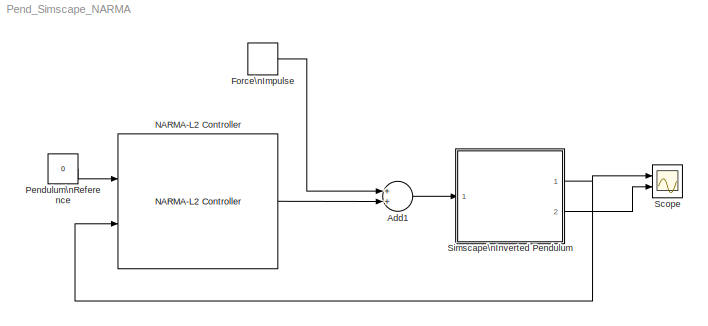
MODEL Pend_Simscape_NARMA
KIND model
BLOCK [Sum] Add1
  InputSameDT = off
  OutDataTypeStr = Inherit: Inherit via internal rule
  Ports = [2, 1]
  SID = 84
  SaturateOnIntegerOverflow = off
BLOCK [DiscretePulseGenerator] Force\nImpulse
  Amplitude = 1000
  Period = 10
  Ports = [0, 1]
  PulseType = Time based
  PulseWidth = 0.01
  SID = 85
BLOCK [Reference] NARMA-L2 Controller  REF=neural/Control Systems/NARMA-L2 Controller
  B1 = [4.0827410388636052;-2.7480169537199117;3.9938653016287904;1.6416621221169179;0.09143535551721825;-1.0613774671551153;1.8319879415725189]
  B2 = -3.7562514330025714
  B3 = [5.3103702819776153;-2.9033864762215909;2.1423079116546502;-0.86559210084867333;0.18268348726742417;1.6927221377886998;1.6012407590778299]
  B4 = -0.034451980606893584
  IW1_1 = [-3.6924056938774843 -1.802284662914535 -1.4111010428830473;2.2840951494559287 1.2309270610131906 1.6712881483201816;-2.919508523796281 -0.75707831959701843 0.33354935478644038;-4.9174278988374809 2.5736314543159304 -0.0033537807039824559;2.1799153856390943 1.8291411822184034 -1.4486797423626137;-1.7308817445673805 1.6958843590210397 -1.7596686211224779;1.8096550296520935 2.2804834869161525 0.3854...<+14ch>
  IW3_2 = [-5.9052189973877613 3.8214338615589147 0.025370848505931742;2.9766611822840745 0.53188916725796254 1.8519364095485766;-3.3407905540219676 -1.5692531625034507 -0.60370968513271428;2.2491467740026345 -2.1722796430145737 -0.76769358028662449;1.8914669418145722 -1.3241505774172171 2.0115838865941971;0.22939079880138086 -1.9244006276922605 1.8646894716084561;2.8657983932516928 -1.8275867742463541 0.81...<+16ch>
  IW5_3 = -0.068940530036870618
  LW2_1 = [-0.051644636299883917 -0.35272470439449544 -1.2250651476020313 -4.2708391509559398 1.2290321513788245 -0.76494441990324114 -0.44247695085948913]
  LW4_3 = [2.7159004469744152 0.47791569008378731 1.1463181584805096 0.40535868971023298 -0.60714158392711404 -0.50546607456609505 0.26389152704638413]
  LW5_4 = 0.064048098205895715
  LW6_2 = 0.20589091780600058
  LW6_5 = -0.038446540367651896
  Limit_output = 0
  Ni = 2
  Nj = 2
  Normalize = 0
  Ports = [2, 1]
  S1 = 7
  SID = 143
  SourceBlock = neural/Control Systems/NARMA-L2 Controller
  SourceType = NARMA-L2 Controller
  Ts = 0.2
  Use_Previous_Weights = 1
  Use_Testing = 1
  Use_validation = 1
  epochs = 200
  max_i = 1000
  max_i_int = 2
  max_output = Inf
  maxp = 993.70042914989722
  maxt = 993.70042914989722
  min_i = -1000
  min_i_int = 0.01
  min_output = -Inf
  minp = -997.39886259880768
  mint = -3.137330321837569
  sam_training = 500
  sim_file = Pend_Model_Simscape_oneout
  trainfun = trainlm
BLOCK [Constant] Pendulum\nReference
  SID = 82
  Value = 0
BLOCK [Scope] Scope
  DataFormat = StructureWithTime
  Floating = off
  NumInputPorts = 2
  Ports = [2]
  SID = 74
  SampleTime = 0
  ShowLegends = off
  YMax = 5~5
  YMin = -5~-5
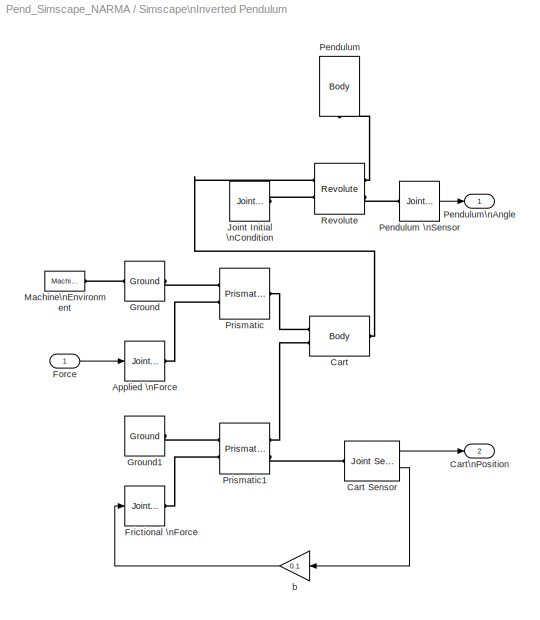
BLOCK [SubSystem] Simscape\nInverted Pendulum
  Ports = [1, 2]
  RequestExecContextInheritance = off
  SID = 125
BLOCK [Reference] Simscape\nInverted Pendulum/Applied \nForce  REF=mblibv1/Sensors & \nActuators/Joint Actuator
  AccelerationUnits = m/s^2
  ActiveIO = on
  ActuationStyle = Force
  AngleUnits = deg
  ArcAccelerationUnits = deg/s^2
  ArcVelocityUnits = deg/s
  ClassName = JointActuator
  CoordPositionUnits = m
  DialogClass = MechanicalActuatorBlock
  ForceUnits = N
  PhysicalDomain = Mechanical
  PortType = blob
  Ports = [1, 0, 0, 0, 0, 0, 1]
  Primitive = P1
  ReferenceFrame = Absolute (World)
  SID = 127
  SourceBlock = mblibv1/Sensors & \nActuators/Joint Actuator
  SourceType = Joint Actuator
  TorqueUnits = N-m
  UpdateFromCAD = off
  VelocityUnits = m/s
  Width = 1
BLOCK [Reference] Simscape\nInverted Pendulum/Cart  REF=mblibv1/Bodies/Body
  AttachedToCS = CG
  BodyColor = [1 0 0]
  BodyColorSelMode = MACHINE_DEFAULT
  CG = Left$CG$[0 0 0]$WORLD$WORLD$m$[0 0 0]$Euler X-Y-Z$deg$WORLD$false$none
  CGPos = [0 0 0]
  CGRot = [0 0 0]
  CS0Pos = []
  CS0Rot = []
  CS10Pos = []
  CS10Rot = []
  CS11Pos = []
  CS11Rot = []
  CS12Pos = []
  CS12Rot = []
  CS13Pos = []
  CS13Rot = []
  CS14Pos = []
  CS14Rot = []
  CS15Pos = []
  CS15Rot = []
  CS16Pos = []
  CS16Rot = []
  CS17Pos = []
  CS17Rot = []
  CS18Pos = []
  CS18Rot = []
  CS19Pos = []
  CS19Rot = []
  CS1Pos = [-1 0 0]
  CS1Rot = [0 0 0]
  CS20Pos = []
  CS20Rot = []
  CS2Pos = [0 0 0]
  CS2Rot = [0 0 0]
  CS3Pos = [0 0.5 0]
  CS3Rot = [0 0 0]
  CS4Pos = [-1 0.5 0]
  CS4Rot = [0 0 0]
  CS5Pos = [-1 -0.5 0]
  CS5Rot = [0 0 0]
  CS6Pos = [1 -0.5 0]
  CS6Rot = [0 0 0]
  CS7Pos = [1 0.5 0]
  CS7Rot = [0 0 0]
  CS8Pos = []
  CS8Rot = []
  CS9Pos = []
  CS9Rot = []
  ClassName = Body
  Density = 1
  DensityUnits = kg/m^3
  DensityUse = false
  DialogClass = MechanicalBodyBlock
  GraphicsMode = MACHINE_DEFAULT
  Inertia = eye(3)
  InertiaUnits = kg*m^2
  LConnTagsString = CS1|CS2
  Mass = 0.5
  MassUnits = kg
  Ports = [0, 0, 0, 0, 0, 2, 1]
  RConnTagsString = CS3
  SID = 128
  Shape = Cylinder
  ShapeDims = [1 1]
  ShapeUnits = m
  ShapeUse = false
  SourceBlock = mblibv1/Bodies/Body
  SourceType = Body
  UpdateFromCAD = off
  WorkingFrames = Left$CS1$[-1 0 0]$CG$CG$m$[0 0 0]$Euler X-Y-Z$deg$WORLD$true$none#Left$CS2$[0 0 0]$CG$CG$m$[0 0 0]$Euler X-Y-Z$deg$WORLD$true$none#Right$CS3$[0 0.5 0]$CG$CG$m$[0 0 0]$Euler X-Y-Z$deg$WORLD$true$none#Right$CS4$[-1 0.5 0]$CG$CG$m$[0 0 0]$Euler X-Y-Z$deg$WORLD$false$none#Right$CS5$[-1 -0.5 0]$CG$CG$m$[0 0 0]$Euler X-Y-Z$deg$WORLD$false$none#Right$CS6$[1 -0.5 0]$CG$CG$m$[0 0 0]$Euler X-Y-Z$deg$WORLD$f...<+78ch>
BLOCK [Reference] Simscape\nInverted Pendulum/Cart Sensor  REF=mblibv1/Sensors & \nActuators/Joint Sensor
  Acceleration = off
  AccelerationUnits = m/s^2
  ActiveIO = on
  Angle = on
  AngleUnits = deg
  ArcAcceleration = off
  ArcAccelerationUnits = deg/s^2
  ArcVelocity = off
  ArcVelocityUnits = deg/s
  ClassName = JointSensor
  CoordPosition = on
  CoordPositionUnits = m
  DialogClass = MechanicalSensorBlock
  Force = off
  ForceUnits = N
  Muxed = off
  OutputVector = [1]
  PhysicalDomain = Mechanical
  PortType = blob
  Ports = [0, 2, 0, 0, 0, 1]
  Pose = off
  Primitive = P1
  Quaternion = on
  QuaternionDDT = off
  QuaternionDT = off
  QuaternionUnits = off
  ReactionForce = off
  ReactionForceUnits = N
  ReactionMoment = off
  ReactionMomentUnits = N*m
  ReactionReferenceFrame = Absolute (World)
  ReactionSensedSide = Base
  ReferenceFrame = Absolute (World)
  SID = 129
  SourceBlock = mblibv1/Sensors & \nActuators/Joint Sensor
  SourceType = Joint Sensor
  Torque = off
  TorqueUnits = N*m
  UpdateFromCAD = off
  Velocity = on
  VelocityUnits = m/s
  Width = 2
BLOCK [Outport] Simscape\nInverted Pendulum/Cart\nPosition
  IconDisplay = Port number
  Port = 2
  SID = 142
BLOCK [Inport] Simscape\nInverted Pendulum/Force
  IconDisplay = Port number
  SID = 126
BLOCK [Reference] Simscape\nInverted Pendulum/Frictional \nForce  REF=mblibv1/Sensors & \nActuators/Joint Actuator
  AccelerationUnits = m/s^2
  ActiveIO = on
  ActuationStyle = Force
  AngleUnits = deg
  ArcAccelerationUnits = deg/s^2
  ArcVelocityUnits = deg/s
  ClassName = JointActuator
  CoordPositionUnits = m
  DialogClass = MechanicalActuatorBlock
  ForceUnits = N
  PhysicalDomain = Mechanical
  PortType = blob
  Ports = [1, 0, 0, 0, 0, 0, 1]
  Primitive = P1
  ReferenceFrame = Absolute (World)
  SID = 130
  SourceBlock = mblibv1/Sensors & \nActuators/Joint Actuator
  SourceType = Joint Actuator
  TorqueUnits = N*m
  UpdateFromCAD = off
  VelocityUnits = m/s
  Width = 1
BLOCK [Reference] Simscape\nInverted Pendulum/Ground  REF=mblibv1/Bodies/Ground
  ClassName = Ground
  CoordPosition = [0 0 0]
  CoordPositionUnits = m
  DialogClass = GroundBlock
  LeftPortType = env
  MachineId = [3 0]
  ParameterChecksum = [1254869985, 4206444564, 3095028029, 2774129723]
  PhysicalDomain = Mechanical
  Ports = [0, 0, 0, 0, 0, 1, 1]
  RightPortType = workingframe
  SID = 131
  ShowEnvPort = on
  SourceBlock = mblibv1/Bodies/Ground
  SourceType = Ground
  StateVectorMgrId = 2
  TopologyChecksum = [3746998663, 3600958226, 2257776728, 1750351036]
  UpdateFromCAD = off
  UserData = DataTag0
  UserDataPersistent = on
BLOCK [Reference] Simscape\nInverted Pendulum/Ground1  REF=mblibv1/Bodies/Ground
  ClassName = Ground
  CoordPosition = [0 0 0]
  CoordPositionUnits = m
  DialogClass = GroundBlock
  LeftPortType = env
  MachineId = [0 0]
  ParameterChecksum = [0 0 0 0]
  PhysicalDomain = Mechanical
  Ports = [0, 0, 0, 0, 0, 0, 1]
  RightPortType = workingframe
  SID = 132
  ShowEnvPort = off
  SourceBlock = mblibv1/Bodies/Ground
  SourceType = Ground
  StateVectorMgrId = -1
  TopologyChecksum = [0 0 0 0]
  UpdateFromCAD = off
  UserData = DataTag1
  UserDataPersistent = on
BLOCK [Reference] Simscape\nInverted Pendulum/Joint Initial \nCondition  REF=mblibv1/Sensors & \nActuators/Joint Initial Condition
  ClassName = InitialCondition
  DialogClass = InitialConditionBlock
  InitialConditions = P1$false$0$m$deg$0$m/s$deg/s#P2$false$0$m$deg$0$m/s$deg/s#P3$false$0$m$deg$0$m/s$deg/s#R1$true$0$m$deg$0$m/s$deg/s#R2$false$0$m$deg$0$m/s$deg/s#R3$false$0$m$deg$0$m/s$deg/s#S$false$0$m$deg$0$m/s$deg/s
  LeftPortType = blob
  P1PIC = 0
  P1VIC = 0
  P2PIC = 0
  P2VIC = 0
  P3PIC = 0
  P3VIC = 0
  PhysicalDomain = mechanical
  Ports = [0, 0, 0, 0, 0, 0, 1]
  R1PIC = 0
  R1VIC = 0
  R2PIC = 0
  R2VIC = 0
  R3PIC = 0
  R3VIC = 0
  RightPortType = blob
  SID = 133
  SPIC = 0
  SVIC = 0
  SourceBlock = mblibv1/Sensors & \nActuators/Joint Initial Condition
  SourceType = Joint Initial Condition
  UpdateFromCAD = off
BLOCK [Reference] Simscape\nInverted Pendulum/Machine\nEnvironment  REF=mblibv1/Bodies/Machine\nEnvironment
  AnalysisType = Forward dynamics
  AngularAssemblyTolerance = 1e-3
  AngularAssemblyToleranceUnits = rad
  BodyColorSelMode = Use model default
  BodyVisualizationType = Use model default body geometries
  ClassName = Environment
  ConstraintAbsTolerance = 1e-4
  ConstraintRelTolerance = 1e-4
  ConstraintSolverType = Stabilizing
  DefaultBodyColor = [1 0 0]
  DialogTemplateClass = MECH.MachineEnvironment
  Dimensionality = Auto-detect
  Gravity = [0 -9.81 0]
  GravityAsSignal = off
  GravityUnits = m/s^2
  LinearAssemblyTolerance = 1e-3
  LinearAssemblyToleranceUnits = m
  PerturbationSize = 1e-5
  PhysicalDomain = Mechanical
  PortType = env
  Ports = [0, 0, 0, 0, 0, 0, 1]
  RedundancyAnalysisTolerance = 1e-14
  RedundancyAnalysisToleranceType = Automatically select tolerance
  SID = 134
  SourceBlock = mblibv1/Bodies/Machine\nEnvironment
  SourceType = Machine Environment
  StatePerturbationType = Fixed
  SyncWhenCopied = off
  UseRobustSingularityHandling = off
  VisualizeMachine = on
BLOCK [Reference] Simscape\nInverted Pendulum/Pendulum  REF=mblibv1/Bodies/Body
  AttachedToCS = CG
  BodyColor = [0.078431 0.16863 0.54902]
  BodyColorSelMode = COLORPALETTE
  CG = Left$CG$[0 0.3 0]$CS1$CS1$m$[0 0 0]$Euler X-Y-Z$deg$WORLD$false$none
  CGPos = [0 0.3 0]
  CGRot = [0 0 0]
  CS0Pos = []
  CS0Rot = []
  CS10Pos = []
  CS10Rot = []
  CS11Pos = []
  CS11Rot = []
  CS12Pos = []
  CS12Rot = []
  CS13Pos = []
  CS13Rot = []
  CS14Pos = []
  CS14Rot = []
  CS15Pos = []
  CS15Rot = []
  CS16Pos = []
  CS16Rot = []
  CS17Pos = []
  CS17Rot = []
  CS18Pos = []
  CS18Rot = []
  CS19Pos = []
  CS19Rot = []
  CS1Pos = [0 0 0]
  CS1Rot = [0 0 0]
  CS20Pos = []
  CS20Rot = []
  CS2Pos = [0.1 0 0]
  CS2Rot = [0 0 0]
  CS3Pos = [-0.1 0 0]
  CS3Rot = [0 0 0]
  CS4Pos = [-0.1 0.6 0]
  CS4Rot = [0 0 0]
  CS5Pos = [0.1 0.6 0]
  CS5Rot = [0 0 0]
  CS6Pos = []
  CS6Rot = []
  CS7Pos = []
  CS7Rot = []
  CS8Pos = []
  CS8Rot = []
  CS9Pos = []
  CS9Rot = []
  ClassName = Body
  Density = 1
  DensityUnits = kg/m^3
  DensityUse = false
  DialogClass = MechanicalBodyBlock
  GraphicsMode = MACHINE_DEFAULT
  Inertia = 0.006*eye(3)
  InertiaUnits = kg*m^2
  LConnTagsString = CS1
  Mass = 0.2
  MassUnits = kg
  Ports = [0, 0, 0, 0, 0, 1]
  SID = 135
  Shape = Cylinder
  ShapeDims = [1 1]
  ShapeUnits = m
  ShapeUse = false
  SourceBlock = mblibv1/Bodies/Body
  SourceType = Body
  UpdateFromCAD = off
  WorkingFrames = Left$CS1$[0 0 0]$Adjoining$Adjoining$m$[0 0 0]$Euler X-Y-Z$deg$WORLD$true$none#Right$CS2$[0.1 0 0]$CS1$CS1$m$[0 0 0]$Euler X-Y-Z$deg$WORLD$false$none#Right$CS3$[-0.1 0 0]$CS1$CS1$m$[0 0 0]$Euler X-Y-Z$deg$WORLD$false$none#Right$CS4$[-0.1 0.6 0]$CS1$CS1$m$[0 0 0]$Euler X-Y-Z$deg$WORLD$false$none#Right$CS5$[0.1 0.6 0]$CS1$CS1$m$[0 0 0]$Euler X-Y-Z$deg$WORLD$false$none
BLOCK [Reference] Simscape\nInverted Pendulum/Pendulum \nSensor  REF=mblibv1/Sensors & \nActuators/Joint Sensor
  Acceleration = off
  AccelerationUnits = m/s^2
  ActiveIO = on
  Angle = on
  AngleUnits = rad
  ArcAcceleration = off
  ArcAccelerationUnits = deg/s^2
  ArcVelocity = off
  ArcVelocityUnits = deg/s
  ClassName = JointSensor
  CoordPosition = on
  CoordPositionUnits = m
  DialogClass = MechanicalSensorBlock
  Force = off
  ForceUnits = N
  Muxed = on
  OutputVector = [1]
  PhysicalDomain = Mechanical
  PortType = blob
  Ports = [0, 1, 0, 0, 0, 1]
  Pose = off
  Primitive = R1
  Quaternion = on
  QuaternionDDT = off
  QuaternionDT = off
  QuaternionUnits = off
  ReactionForce = off
  ReactionForceUnits = N
  ReactionMoment = off
  ReactionMomentUnits = N*m
  ReactionReferenceFrame = Absolute (World)
  ReactionSensedSide = Base
  ReferenceFrame = Absolute (World)
  SID = 136
  SourceBlock = mblibv1/Sensors & \nActuators/Joint Sensor
  SourceType = Joint Sensor
  Torque = off
  TorqueUnits = N*m
  UpdateFromCAD = off
  Velocity = off
  VelocityUnits = m/s
  Width = 1
BLOCK [Outport] Simscape\nInverted Pendulum/Pendulum\nAngle
  IconDisplay = Port number
  SID = 141
BLOCK [Reference] Simscape\nInverted Pendulum/Prismatic  REF=mblibv1/Joints/Prismatic
  ClassName = Joint
  CutJoint = off
  DialogClass = JointBlock
  LConnTagsString = __newl0|SA1
  MarkAsCut = off
  NumSAPorts = 1
  P1Axis = [1 0 0]
  Ports = [0, 0, 0, 0, 0, 2, 1]
  PrimitiveProps = P1$World$[1 0 0]$prismatic
  Primitives = prismatic
  RConnTagsString = __newr0
  SID = 137
  SourceBlock = mblibv1/Joints/Prismatic
  SourceType = Prismatic
  UpdateFromCAD = off
BLOCK [Reference] Simscape\nInverted Pendulum/Prismatic1  REF=mblibv1/Joints/Prismatic
  ClassName = Joint
  CutJoint = off
  DialogClass = JointBlock
  LConnTagsString = __newl0|SA1
  MarkAsCut = off
  NumSAPorts = 2
  P1Axis = [1 0 0]
  Ports = [0, 0, 0, 0, 0, 2, 2]
  PrimitiveProps = P1$World$[1 0 0]$prismatic
  Primitives = prismatic
  RConnTagsString = __newr0|SA1
  SID = 138
  SourceBlock = mblibv1/Joints/Prismatic
  SourceType = Prismatic
  UpdateFromCAD = off
BLOCK [Reference] Simscape\nInverted Pendulum/Revolute  REF=mblibv1/Joints/Revolute
  ClassName = Joint
  CutJoint = off
  DialogClass = JointBlock
  LConnTagsString = __newl0|SA1
  MarkAsCut = off
  NumSAPorts = 2
  Ports = [0, 0, 0, 0, 0, 2, 2]
  PrimitiveProps = R1$World$[0 0 1]$revolute
  Primitives = prismatic
  R1Axis = [0 0 1]
  RConnTagsString = __newr0|SA1
  SID = 139
  SourceBlock = mblibv1/Joints/Revolute
  SourceType = Revolute
  UpdateFromCAD = off
BLOCK [Gain] Simscape\nInverted Pendulum/b
  Gain = 0.1
  OutDataTypeStr = Inherit: Inherit via internal rule
  ParamDataTypeStr = Inherit: Inherit via internal rule
  SID = 140
  SaturateOnIntegerOverflow = off
LINE Add1:1 -> Simscape\nInverted Pendulum:1
LINE Force\nImpulse:1 -> Add1:1
LINE NARMA-L2 Controller:1 -> Add1:2
LINE Pendulum\nReference:1 -> NARMA-L2 Controller:1
LINE Simscape\nInverted Pendulum/Cart Sensor:1 -> Simscape\nInverted Pendulum/Cart\nPosition:1
LINE Simscape\nInverted Pendulum/Cart Sensor:2 -> Simscape\nInverted Pendulum/b:1
LINE Simscape\nInverted Pendulum/Force:1 -> Simscape\nInverted Pendulum/Applied \nForce:1
LINE Simscape\nInverted Pendulum/Pendulum \nSensor:1 -> Simscape\nInverted Pendulum/Pendulum\nAngle:1
LINE Simscape\nInverted Pendulum/b:1 -> Simscape\nInverted Pendulum/Frictional \nForce:1
NET Simscape\nInverted Pendulum:1 -> NARMA-L2 Controller:2, Scope:1
LINE Simscape\nInverted Pendulum:2 -> Scope:2
PLINE Simscape\nInverted Pendulum/Applied \nForce:RConn1 -- Simscape\nInverted Pendulum/Prismatic:LConn2
PLINE Simscape\nInverted Pendulum/Cart Sensor:LConn1 -- Simscape\nInverted Pendulum/Prismatic1:RConn2
PLINE Simscape\nInverted Pendulum/Cart:LConn1 -- Simscape\nInverted Pendulum/Prismatic:RConn1
PLINE Simscape\nInverted Pendulum/Cart:LConn2 -- Simscape\nInverted Pendulum/Prismatic1:RConn1
PLINE Simscape\nInverted Pendulum/Cart:RConn1 -- Simscape\nInverted Pendulum/Revolute:LConn1
PLINE Simscape\nInverted Pendulum/Frictional \nForce:RConn1 -- Simscape\nInverted Pendulum/Prismatic1:LConn2
PLINE Simscape\nInverted Pendulum/Ground1:RConn1 -- Simscape\nInverted Pendulum/Prismatic1:LConn1
PLINE Simscape\nInverted Pendulum/Ground:LConn1 -- Simscape\nInverted Pendulum/Machine\nEnvironment:RConn1
PLINE Simscape\nInverted Pendulum/Ground:RConn1 -- Simscape\nInverted Pendulum/Prismatic:LConn1
PLINE Simscape\nInverted Pendulum/Joint Initial \nCondition:RConn1 -- Simscape\nInverted Pendulum/Revolute:LConn2
PLINE Simscape\nInverted Pendulum/Pendulum \nSensor:LConn1 -- Simscape\nInverted Pendulum/Revolute:RConn2
PLINE Simscape\nInverted Pendulum/Pendulum:LConn1 -- Simscape\nInverted Pendulum/Revolute:RConn1
note: NET lines group one-source signal fan-out (src -> all destinations, sorted); 1:1 wires keep LINE
